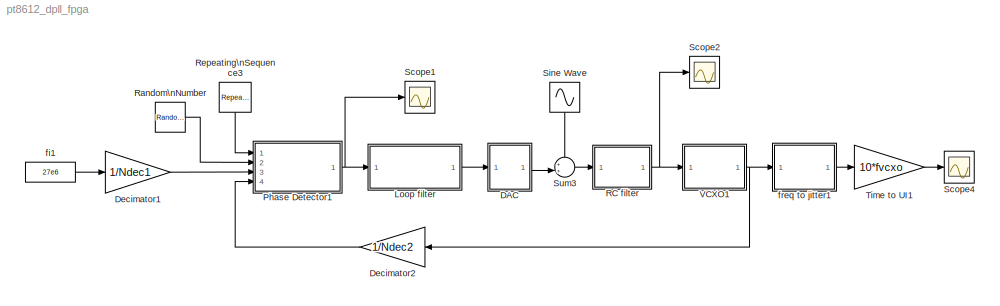
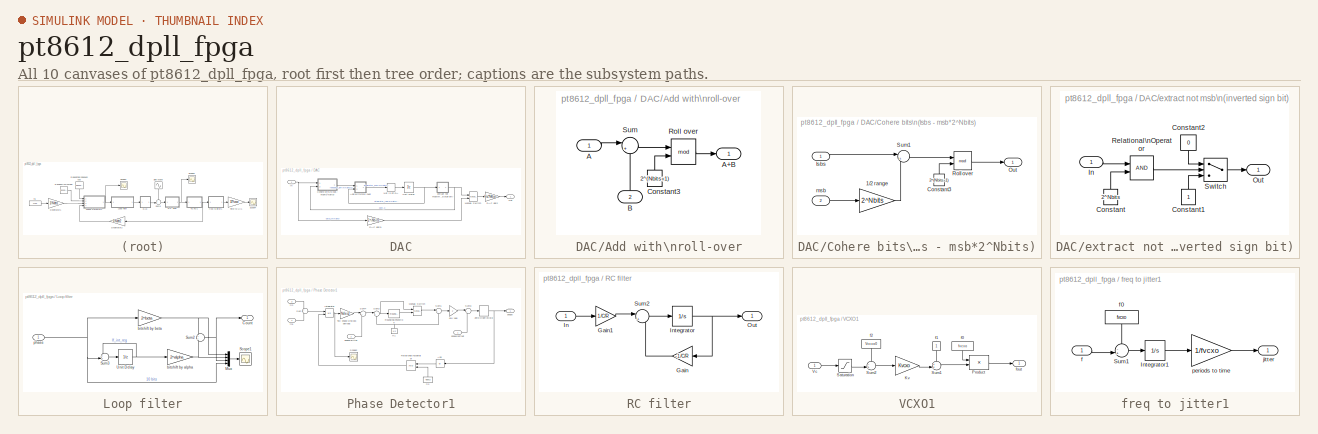
[diagram: thumbnail index - all 10 canvases of the model, root first then tree order]
MODEL pt8612_dpll_fpga
KIND model
CONFIG AbsTol = 1e-12
CONFIG FixedStep = auto
CONFIG MaxStep = auto
CONFIG MinStep = auto
CONFIG RelTol = 1e-9
CONFIG Solver = ode45
CONFIG SolverMode = Auto
CONFIG StartTime = 0.0
CONFIG StopTime = 10
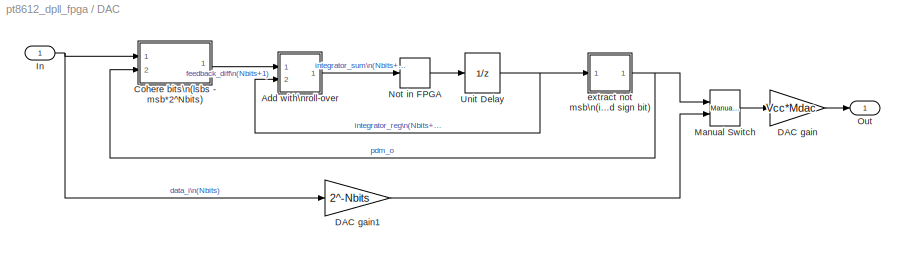
BLOCK [SubSystem] DAC
  Ports = [1, 1]
  TreatAsAtomicUnit = off
BLOCK [SubSystem] DAC/Add with\nroll-over
  Ports = [2, 1]
  TreatAsAtomicUnit = off
BLOCK [Inport] DAC/Add with\nroll-over/A
BLOCK [Outport] DAC/Add with\nroll-over/A+B
BLOCK [Inport] DAC/Add with\nroll-over/B
  Port = 2
BLOCK [Constant] DAC/Add with\nroll-over/Constant3
  Value = 2^(Nbits+1)
BLOCK [Math] DAC/Add with\nroll-over/Roll over
  Operator = mod
  Ports = [2, 1]
BLOCK [Sum] DAC/Add with\nroll-over/Sum
  IconShape = round
  InputSameDT = off
  Inputs = |++
  OutDataTypeMode = Inherit via internal rule
  Ports = [2, 1]
BLOCK [SubSystem] DAC/Cohere bits\n(lsbs - msb*2^Nbits)
  Ports = [2, 1]
  TreatAsAtomicUnit = off
BLOCK [Gain] DAC/Cohere bits\n(lsbs - msb*2^Nbits)/1//2 range
  Gain = 2^Nbits
BLOCK [Constant] DAC/Cohere bits\n(lsbs - msb*2^Nbits)/Constant3
  Value = 2^(Nbits+1)
BLOCK [Inport] DAC/Cohere bits\n(lsbs - msb*2^Nbits)/Isbs
BLOCK [Outport] DAC/Cohere bits\n(lsbs - msb*2^Nbits)/Out
BLOCK [Math] DAC/Cohere bits\n(lsbs - msb*2^Nbits)/Roll over
  Operator = mod
  Ports = [2, 1]
BLOCK [Sum] DAC/Cohere bits\n(lsbs - msb*2^Nbits)/Sum1
  IconShape = round
  InputSameDT = off
  Inputs = |++
  OutDataTypeMode = Inherit via internal rule
  Ports = [2, 1]
BLOCK [Inport] DAC/Cohere bits\n(lsbs - msb*2^Nbits)/msb
  Port = 2
BLOCK [Gain] DAC/DAC gain
  Gain = Vcc*Mdac
BLOCK [Gain] DAC/DAC gain1
  Gain = 2^-Nbits
BLOCK [Inport] DAC/In
BLOCK [Reference] DAC/Manual Switch  REF=simulink/Signal\nRouting/Manual Switch
  Ports = [2, 1]
  SourceBlock = simulink/Signal\nRouting/Manual Switch
  SourceType = Manual Switch
  action = 0
  sw = 0
BLOCK [Quantizer] DAC/Not in FPGA
  QuantizationInterval = 1
BLOCK [Outport] DAC/Out
BLOCK [UnitDelay] DAC/Unit Delay
  SampleTime = Tdac
BLOCK [SubSystem] DAC/extract not msb\n(inverted sign bit)
  Ports = [1, 1]
  TreatAsAtomicUnit = off
BLOCK [Constant] DAC/extract not msb\n(inverted sign bit)/Constant
  Value = 2^Nbits
BLOCK [Constant] DAC/extract not msb\n(inverted sign bit)/Constant1
BLOCK [Constant] DAC/extract not msb\n(inverted sign bit)/Constant2
  Value = 0
BLOCK [Inport] DAC/extract not msb\n(inverted sign bit)/In
BLOCK [Outport] DAC/extract not msb\n(inverted sign bit)/Out
BLOCK [RelationalOperator] DAC/extract not msb\n(inverted sign bit)/Relational\nOperator
  InputSameDT = off
BLOCK [Switch] DAC/extract not msb\n(inverted sign bit)/Switch
  InputSameDT = off
  Threshold = 0.5
BLOCK [Gain] Decimator1
  Gain = 1/Ndec1
BLOCK [Gain] Decimator2
  Gain = 1/Ndec2
BLOCK [SubSystem] Loop filter
  Ports = [1, 1]
  TreatAsAtomicUnit = off
BLOCK [Outport] Loop filter/Count
BLOCK [Mux] Loop filter/Mux
  DisplayOption = bar
  Ports = [4, 1]
BLOCK [Scope] Loop filter/Scope1
  DataFormat = StructureWithTime
  Decimation = 100
  LimitDataPoints = off
  NumInputPorts = 1
  Ports = [1]
  SampleInput = on
  SampleTime = Tpll*100
  SaveName = ScopeData5
  TimeRange = 10
  YMax = 9000
  YMin = -500
  ZoomMode = yonly
BLOCK [Sum] Loop filter/Sum2
  IconShape = round
  InputSameDT = off
  OutDataTypeMode = Inherit via internal rule
  Ports = [2, 1]
BLOCK [Sum] Loop filter/Sum3
  IconShape = round
  InputSameDT = off
  Inputs = ++|
  OutDataTypeMode = Inherit via internal rule
  Ports = [2, 1]
BLOCK [UnitDelay] Loop filter/Unit Delay
  SampleTime = Tpll
  X0 = 3.31e4*2^9
BLOCK [Gain] Loop filter/bitshift by alpha
  Gain = 2^alpha
BLOCK [Gain] Loop filter/bitshift by beta
  Gain = 2^beta
BLOCK [Inport] Loop filter/phase
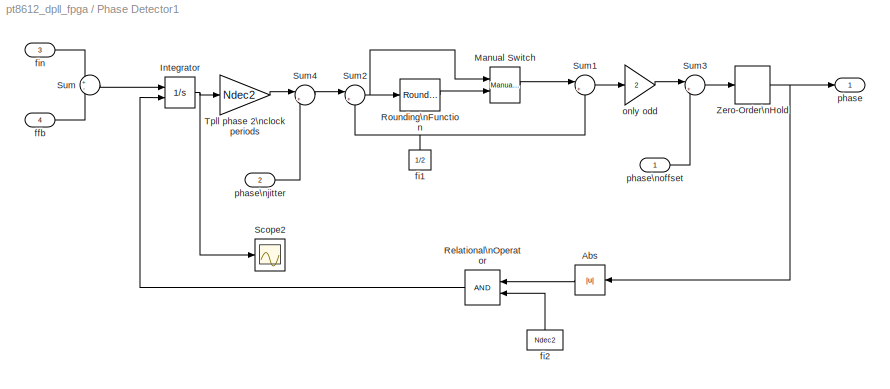
BLOCK [SubSystem] Phase Detector1
  Ports = [4, 1]
  TreatAsAtomicUnit = off
BLOCK [Abs] Phase Detector1/Abs
BLOCK [Integrator] Phase Detector1/Integrator
  ExternalReset = level
  Ports = [2, 1]
BLOCK [Reference] Phase Detector1/Manual Switch  REF=simulink/Signal\nRouting/Manual Switch
  Ports = [2, 1]
  SourceBlock = simulink/Signal\nRouting/Manual Switch
  SourceType = Manual Switch
  action = 0
  sw = 0
BLOCK [RelationalOperator] Phase Detector1/Relational\nOperator
  InputSameDT = off
BLOCK [Rounding] Phase Detector1/Rounding\nFunction
  Operator = round
BLOCK [Scope] Phase Detector1/Scope2
  DataFormat = StructureWithTime
  LimitDataPoints = off
  NumInputPorts = 1
  Ports = [1]
  SampleInput = on
  SampleTime = 1e-4
  SaveName = ScopeData1
  TimeRange = 10
  YMax = 0.5
  YMin = 1.38778e-017
  ZoomMode = yonly
BLOCK [Sum] Phase Detector1/Sum
  IconShape = round
  InputSameDT = off
  Inputs = +-
  OutDataTypeMode = Inherit via internal rule
  Ports = [2, 1]
BLOCK [Sum] Phase Detector1/Sum1
  IconShape = round
  InputSameDT = off
  Inputs = |++
  OutDataTypeMode = Inherit via internal rule
  Ports = [2, 1]
BLOCK [Sum] Phase Detector1/Sum2
  IconShape = round
  InputSameDT = off
  Inputs = |+-
  OutDataTypeMode = Inherit via internal rule
  Ports = [2, 1]
BLOCK [Sum] Phase Detector1/Sum3
  IconShape = round
  InputSameDT = off
  Inputs = |++
  OutDataTypeMode = Inherit via internal rule
  Ports = [2, 1]
BLOCK [Sum] Phase Detector1/Sum4
  IconShape = round
  InputSameDT = off
  Inputs = |++
  OutDataTypeMode = Inherit via internal rule
  Ports = [2, 1]
BLOCK [Gain] Phase Detector1/Tpll phase 2\nclock periods
  Gain = Ndec2
BLOCK [ZeroOrderHold] Phase Detector1/Zero-Order\nHold
  SampleTime = Tpll
BLOCK [Inport] Phase Detector1/ffb
  Port = 4
BLOCK [Constant] Phase Detector1/fi1
  Value = 1/2
BLOCK [Constant] Phase Detector1/fi2
  Value = Ndec2
BLOCK [Inport] Phase Detector1/fin
  Port = 3
BLOCK [Gain] Phase Detector1/only odd
  Gain = 2
BLOCK [Outport] Phase Detector1/phase
BLOCK [Inport] Phase Detector1/phase\njitter
  Port = 2
BLOCK [Inport] Phase Detector1/phase\noffset
BLOCK [SubSystem] RC filter
  Ports = [1, 1]
  TreatAsAtomicUnit = off
BLOCK [Gain] RC filter/Gain
  Gain = -1/C/R
BLOCK [Gain] RC filter/Gain1
  Gain = 1/C/R
BLOCK [Inport] RC filter/In
BLOCK [Integrator] RC filter/Integrator
  InitialCondition = Vvcxo0
  Ports = [1, 1]
BLOCK [Outport] RC filter/Out
BLOCK [Sum] RC filter/Sum2
  IconShape = round
  InputSameDT = off
  Inputs = |++
  OutDataTypeMode = Inherit via internal rule
  Ports = [2, 1]
BLOCK [RandomNumber] Random\nNumber
  SampleTime = Tpll
  Variance = 0
BLOCK [Reference] Repeating\nSequence3  REF=simulink/Sources/Repeating\nSequence
  Ports = [0, 1]
  SourceBlock = simulink/Sources/Repeating\nSequence
  SourceType = Repeating table
  rep_seq_t = [0 0.5 0.5 1]*5
  rep_seq_y = [0 0 1 1]*5
BLOCK [Scope] Scope1
  DataFormat = StructureWithTime
  LimitDataPoints = off
  NumInputPorts = 1
  Ports = [1]
  SampleInput = on
  SampleTime = Tpll
  TimeRange = 10
  YMax = 5500
  YMin = -250
  ZoomMode = yonly
BLOCK [Scope] Scope2
  DataFormat = StructureWithTime
  LimitDataPoints = off
  NumInputPorts = 1
  Ports = [1]
  SampleInput = on
  SampleTime = 1e-4
  SaveName = ScopeData3
  TimeRange = 10
  YMax = 0.29
  YMin = 0.22
  ZoomMode = yonly
BLOCK [Scope] Scope4
  DataFormat = StructureWithTime
  LimitDataPoints = off
  NumInputPorts = 1
  Ports = [1]
  SampleInput = on
  SampleTime = 1e-4
  SaveName = ScopeData2
  TimeRange = 10
  YMax = -2977.5
  YMin = -3020
  ZoomMode = xonly
BLOCK [Sin] Sine Wave
  Amplitude = 0
  Frequency = 2*pi*25
  SampleTime = 0
  SineType = Time based
BLOCK [Sum] Sum3
  IconShape = round
  InputSameDT = off
  Inputs = ++|
  OutDataTypeMode = Inherit via internal rule
  Ports = [2, 1]
BLOCK [Gain] Time to UI1
  Gain = 10*fvcxo
BLOCK [SubSystem] VCXO1
  Ports = [1, 1]
  TreatAsAtomicUnit = off
BLOCK [Gain] VCXO1/Kv
  Gain = Kvcxo
BLOCK [Product] VCXO1/Product
  InputSameDT = off
  Ports = [2, 1]
BLOCK [Saturate] VCXO1/Saturation
  LowerLimit = Vvcxomin
  UpperLimit = Vvcxomax
BLOCK [Sum] VCXO1/Sum1
  IconShape = round
  InputSameDT = off
  Inputs = ++|
  OutDataTypeMode = Inherit via internal rule
  Ports = [2, 1]
BLOCK [Sum] VCXO1/Sum2
  IconShape = round
  InputSameDT = off
  Inputs = -+|
  OutDataTypeMode = Inherit via internal rule
  Ports = [2, 1]
BLOCK [Inport] VCXO1/Vc
BLOCK [Constant] VCXO1/f0
  Value = fvcxo
BLOCK [Constant] VCXO1/f1
BLOCK [Constant] VCXO1/f2
  Value = Vvcxo0
BLOCK [Outport] VCXO1/fout
BLOCK [Constant] fi1
  Value = 27e6
BLOCK [SubSystem] freq to jitter1
  Ports = [1, 1]
  TreatAsAtomicUnit = off
BLOCK [Integrator] freq to jitter1/Integrator1
  Ports = [1, 1]
BLOCK [Sum] freq to jitter1/Sum1
  IconShape = round
  InputSameDT = off
  Inputs = -+|
  OutDataTypeMode = Inherit via internal rule
  Ports = [2, 1]
BLOCK [Inport] freq to jitter1/f
BLOCK [Constant] freq to jitter1/f0
  Value = fvcxo
BLOCK [Outport] freq to jitter1/jitter
BLOCK [Gain] freq to jitter1/periods to time
  Gain = 1/fvcxo
LINE DAC/Add with\nroll-over/A:1 -> DAC/Add with\nroll-over/Sum:1
LINE DAC/Add with\nroll-over/B:1 -> DAC/Add with\nroll-over/Sum:2
LINE DAC/Add with\nroll-over/Constant3:1 -> DAC/Add with\nroll-over/Roll over:2
LINE DAC/Add with\nroll-over/Roll over:1 -> DAC/Add with\nroll-over/A+B:1
LINE DAC/Add with\nroll-over/Sum:1 -> DAC/Add with\nroll-over/Roll over:1
LINE DAC/Add with\nroll-over:1 -> DAC/Not in FPGA:1
LINE DAC/Cohere bits\n(lsbs - msb*2^Nbits)/1//2 range:1 -> DAC/Cohere bits\n(lsbs - msb*2^Nbits)/Sum1:2
LINE DAC/Cohere bits\n(lsbs - msb*2^Nbits)/Constant3:1 -> DAC/Cohere bits\n(lsbs - msb*2^Nbits)/Roll over:2
LINE DAC/Cohere bits\n(lsbs - msb*2^Nbits)/Isbs:1 -> DAC/Cohere bits\n(lsbs - msb*2^Nbits)/Sum1:1
LINE DAC/Cohere bits\n(lsbs - msb*2^Nbits)/Roll over:1 -> DAC/Cohere bits\n(lsbs - msb*2^Nbits)/Out:1
LINE DAC/Cohere bits\n(lsbs - msb*2^Nbits)/Sum1:1 -> DAC/Cohere bits\n(lsbs - msb*2^Nbits)/Roll over:1
LINE DAC/Cohere bits\n(lsbs - msb*2^Nbits)/msb:1 -> DAC/Cohere bits\n(lsbs - msb*2^Nbits)/1//2 range:1
LINE DAC/Cohere bits\n(lsbs - msb*2^Nbits):1 -> DAC/Add with\nroll-over:1
LINE DAC/DAC gain1:1 -> DAC/Manual Switch:2
LINE DAC/DAC gain:1 -> DAC/Out:1
NET DAC/In:1 -> DAC/Cohere bits\n(lsbs - msb*2^Nbits):1, DAC/DAC gain1:1
LINE DAC/Manual Switch:1 -> DAC/DAC gain:1
LINE DAC/Not in FPGA:1 -> DAC/Unit Delay:1
NET DAC/Unit Delay:1 -> DAC/Add with\nroll-over:2, DAC/extract not msb\n(inverted sign bit):1
LINE DAC/extract not msb\n(inverted sign bit)/Constant1:1 -> DAC/extract not msb\n(inverted sign bit)/Switch:3
LINE DAC/extract not msb\n(inverted sign bit)/Constant2:1 -> DAC/extract not msb\n(inverted sign bit)/Switch:1
LINE DAC/extract not msb\n(inverted sign bit)/Constant:1 -> DAC/extract not msb\n(inverted sign bit)/Relational\nOperator:2
LINE DAC/extract not msb\n(inverted sign bit)/In:1 -> DAC/extract not msb\n(inverted sign bit)/Relational\nOperator:1
LINE DAC/extract not msb\n(inverted sign bit)/Relational\nOperator:1 -> DAC/extract not msb\n(inverted sign bit)/Switch:2
LINE DAC/extract not msb\n(inverted sign bit)/Switch:1 -> DAC/extract not msb\n(inverted sign bit)/Out:1
NET DAC/extract not msb\n(inverted sign bit):1 -> DAC/Cohere bits\n(lsbs - msb*2^Nbits):2, DAC/Manual Switch:1
LINE DAC:1 -> Sum3:2
LINE Decimator1:1 -> Phase Detector1:3
LINE Decimator2:1 -> Phase Detector1:4
LINE Loop filter/Mux:1 -> Loop filter/Scope1:1
NET Loop filter/Sum2:1 -> Loop filter/Count:1, Loop filter/Mux:3
LINE Loop filter/Sum3:1 -> Loop filter/Unit Delay:1
NET Loop filter/Unit Delay:1 -> Loop filter/Sum3:1, Loop filter/bitshift by alpha:1
NET Loop filter/bitshift by alpha:1 -> Loop filter/Mux:2, Loop filter/Sum2:2
NET Loop filter/bitshift by beta:1 -> Loop filter/Mux:1, Loop filter/Sum2:1
NET Loop filter/phase:1 -> Loop filter/Mux:4, Loop filter/Sum3:2, Loop filter/bitshift by beta:1
LINE Loop filter:1 -> DAC:1
LINE Phase Detector1/Abs:1 -> Phase Detector1/Relational\nOperator:1
NET Phase Detector1/Integrator:1 -> Phase Detector1/Scope2:1, Phase Detector1/Tpll phase 2\nclock periods:1
LINE Phase Detector1/Manual Switch:1 -> Phase Detector1/Sum1:1
LINE Phase Detector1/Relational\nOperator:1 -> Phase Detector1/Integrator:2
LINE Phase Detector1/Rounding\nFunction:1 -> Phase Detector1/Manual Switch:2
LINE Phase Detector1/Sum1:1 -> Phase Detector1/only odd:1
NET Phase Detector1/Sum2:1 -> Phase Detector1/Manual Switch:1, Phase Detector1/Rounding\nFunction:1
LINE Phase Detector1/Sum3:1 -> Phase Detector1/Zero-Order\nHold:1
LINE Phase Detector1/Sum4:1 -> Phase Detector1/Sum2:1
LINE Phase Detector1/Sum:1 -> Phase Detector1/Integrator:1
LINE Phase Detector1/Tpll phase 2\nclock periods:1 -> Phase Detector1/Sum4:1
NET Phase Detector1/Zero-Order\nHold:1 -> Phase Detector1/Abs:1, Phase Detector1/phase:1
LINE Phase Detector1/ffb:1 -> Phase Detector1/Sum:2
NET Phase Detector1/fi1:1 -> Phase Detector1/Sum1:2, Phase Detector1/Sum2:2
LINE Phase Detector1/fi2:1 -> Phase Detector1/Relational\nOperator:2
LINE Phase Detector1/fin:1 -> Phase Detector1/Sum:1
LINE Phase Detector1/only odd:1 -> Phase Detector1/Sum3:1
LINE Phase Detector1/phase\njitter:1 -> Phase Detector1/Sum4:2
LINE Phase Detector1/phase\noffset:1 -> Phase Detector1/Sum3:2
NET Phase Detector1:1 -> Loop filter:1, Scope1:1
LINE RC filter/Gain1:1 -> RC filter/Sum2:1
LINE RC filter/Gain:1 -> RC filter/Sum2:2
LINE RC filter/In:1 -> RC filter/Gain1:1
NET RC filter/Integrator:1 -> RC filter/Gain:1, RC filter/Out:1
LINE RC filter/Sum2:1 -> RC filter/Integrator:1
NET RC filter:1 -> Scope2:1, VCXO1:1
LINE Random\nNumber:1 -> Phase Detector1:2
LINE Repeating\nSequence3:1 -> Phase Detector1:1
LINE Sine Wave:1 -> Sum3:1
LINE Sum3:1 -> RC filter:1
LINE Time to UI1:1 -> Scope4:1
LINE VCXO1/Kv:1 -> VCXO1/Sum1:2
LINE VCXO1/Product:1 -> VCXO1/fout:1
LINE VCXO1/Saturation:1 -> VCXO1/Sum2:2
LINE VCXO1/Sum1:1 -> VCXO1/Product:2
LINE VCXO1/Sum2:1 -> VCXO1/Kv:1
LINE VCXO1/Vc:1 -> VCXO1/Saturation:1
LINE VCXO1/f0:1 -> VCXO1/Product:1
LINE VCXO1/f1:1 -> VCXO1/Sum1:1
LINE VCXO1/f2:1 -> VCXO1/Sum2:1
NET VCXO1:1 -> Decimator2:1, freq to jitter1:1
LINE fi1:1 -> Decimator1:1
LINE freq to jitter1/Integrator1:1 -> freq to jitter1/periods to time:1
LINE freq to jitter1/Sum1:1 -> freq to jitter1/Integrator1:1
LINE freq to jitter1/f0:1 -> freq to jitter1/Sum1:1
LINE freq to jitter1/f:1 -> freq to jitter1/Sum1:2
LINE freq to jitter1/periods to time:1 -> freq to jitter1/jitter:1
LINE freq to jitter1:1 -> Time to UI1:1
note: NET lines group one-source signal fan-out (src -> all destinations, sorted); 1:1 wires keep LINE
